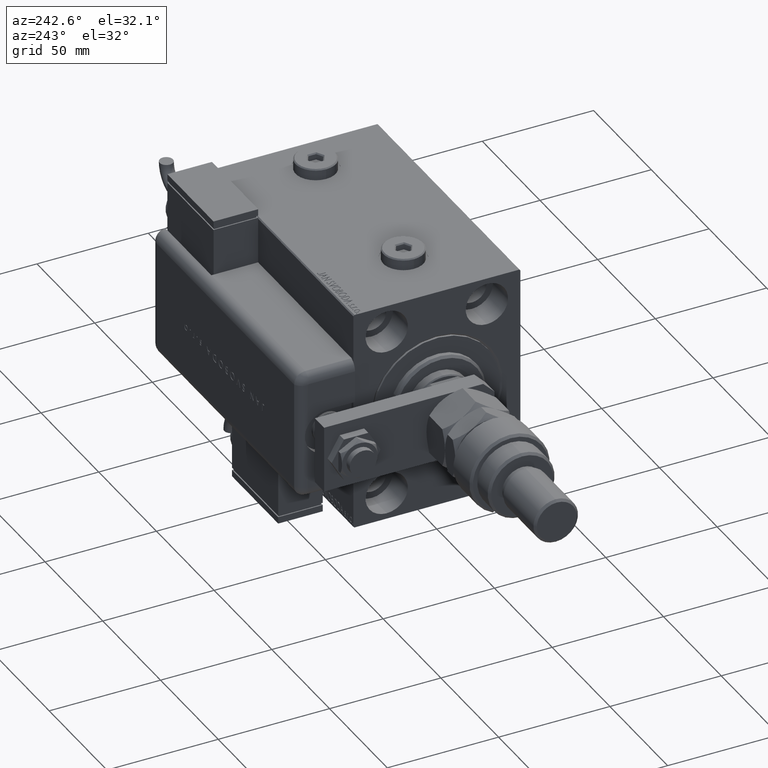
[diagram: clean part render]
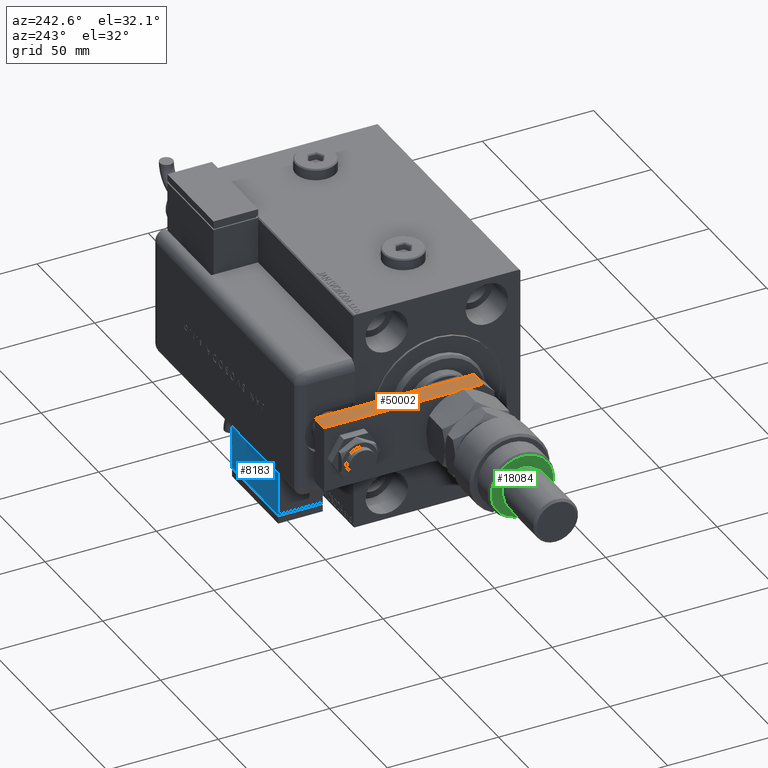
[diagram: same view with three faces highlighted in distinct colors, each labeled with its STEP entity id]
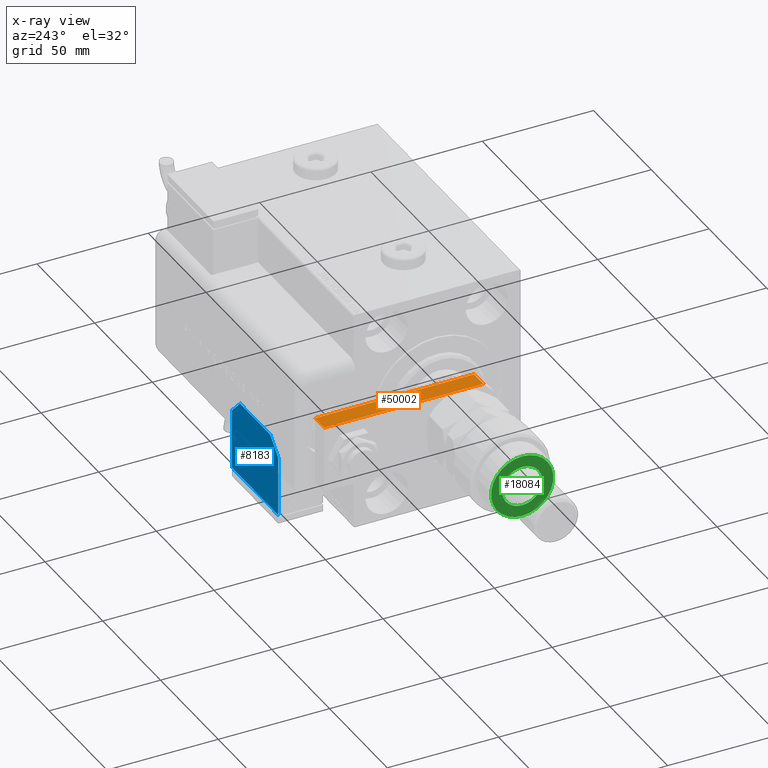
[diagram: x-ray of the same camera — body ghosted, the three highlighted faces saturated]
A machine part, auxiliary view with three faces highlighted in distinct colors.
The next image is the same camera in x-ray (body ghosted, the three faces saturated) — at least one of them is partly hidden behind the body in this view.
Their STEP definitions:

[orange] entity #50002 — the highlighted planar face has unit normal (-0, -0, -1).
#1119 = CARTESIAN_POINT ( 'NONE',  ( -14.99999999999999822, 76.50000000000000000, 8.000000000000000000 ) ) ;
#1383 = EDGE_CURVE ( 'NONE', #55730, #44497, #55111, .T. ) ;
#1723 = CARTESIAN_POINT ( 'NONE',  ( -15.00000000000000888, 5.000000000000018652, 8.000000000000000000 ) ) ;
#2107 = CARTESIAN_POINT ( 'NONE',  ( -14.99999999999999822, 76.50000000000000000, 0.000000000000000000 ) ) ;
#2666 = CARTESIAN_POINT ( 'NONE',  ( -15.00000000000000888, 5.000000000000018652, 0.000000000000000000 ) ) ;
#3245 = ORIENTED_EDGE ( 'NONE', *, *, #14429, .T. ) ;
#5252 = VERTEX_POINT ( 'NONE', #2666 ) ;
#9376 = DIRECTION ( 'NONE',  ( 1.360567432138672574E-16, 1.000000000000000000, 0.000000000000000000 ) ) ;
#9900 = LINE ( 'NONE', #59379, #62229 ) ;
#13666 = DIRECTION ( 'NONE',  ( 0.000000000000000000, 0.000000000000000000, 1.000000000000000000 ) ) ;
#14429 = EDGE_CURVE ( 'NONE', #44388, #5252, #23788, .T. ) ;
#17883 = LINE ( 'NONE', #22726, #25192 ) ;
#18760 = FACE_OUTER_BOUND ( 'NONE', #54219, .T. ) ;
#19997 = VECTOR ( 'NONE', #20818, 1000.000000000000000 ) ;
#20378 = EDGE_CURVE ( 'NONE', #55730, #44388, #9900, .T. ) ;
#20818 = DIRECTION ( 'NONE',  ( -1.360567432138672328E-16, -1.000000000000000000, 0.000000000000000000 ) ) ;
#22726 = CARTESIAN_POINT ( 'NONE',  ( -15.00000000000000888, 5.000000000000018652, 8.000000000000000000 ) ) ;
#23788 = LINE ( 'NONE', #53241, #49523 ) ;
#25192 = VECTOR ( 'NONE', #13666, 1000.000000000000000 ) ;
#33053 = ORIENTED_EDGE ( 'NONE', *, *, #60301, .T. ) ;
#38482 = CARTESIAN_POINT ( 'NONE',  ( -14.99999999999999822, 76.50000000000000000, 8.000000000000000000 ) ) ;
#39455 = ORIENTED_EDGE ( 'NONE', *, *, #1383, .F. ) ;
#43329 = PLANE ( 'NONE',  #58946 ) ;
#43398 = ORIENTED_EDGE ( 'NONE', *, *, #20378, .T. ) ;
#43832 = DIRECTION ( 'NONE',  ( -1.360567432138672328E-16, -1.000000000000000000, 0.000000000000000000 ) ) ;
#44388 = VERTEX_POINT ( 'NONE', #2107 ) ;
#44497 = VERTEX_POINT ( 'NONE', #1723 ) ;
#49523 = VECTOR ( 'NONE', #43832, 1000.000000000000000 ) ;
#50002 = ADVANCED_FACE ( 'NONE', ( #18760 ), #43329, .F. ) ;
#53241 = CARTESIAN_POINT ( 'NONE',  ( -14.99999999999999822, 76.50000000000000000, 0.000000000000000000 ) ) ;
#53686 = DIRECTION ( 'NONE',  ( 1.000000000000000000, -1.360567432138672574E-16, 0.000000000000000000 ) ) ;
#54219 = EDGE_LOOP ( 'NONE', ( #3245, #33053, #39455, #43398 ) ) ;
#54224 = CARTESIAN_POINT ( 'NONE',  ( -14.99999999999999822, 76.50000000000000000, 8.000000000000000000 ) ) ;
#55111 = LINE ( 'NONE', #1119, #19997 ) ;
#55730 = VERTEX_POINT ( 'NONE', #54224 ) ;
#58732 = DIRECTION ( 'NONE',  ( -0.000000000000000000, -0.000000000000000000, -1.000000000000000000 ) ) ;
#58946 = AXIS2_PLACEMENT_3D ( 'NONE', #38482, #53686, #9376 ) ;
#59379 = CARTESIAN_POINT ( 'NONE',  ( -14.99999999999999822, 76.50000000000000000, 8.000000000000000000 ) ) ;
#60301 = EDGE_CURVE ( 'NONE', #5252, #44497, #17883, .T. ) ;
#62229 = VECTOR ( 'NONE', #58732, 1000.000000000000000 ) ;

[blue] entity #8183 — the highlighted planar face has unit normal (-0, 1, -0).
#636 = VERTEX_POINT ( 'NONE', #5479 ) ;
#806 = DIRECTION ( 'NONE',  ( 0.000000000000000000, 0.000000000000000000, 1.000000000000000000 ) ) ;
#1117 = CARTESIAN_POINT ( 'NONE',  ( 20.00000000000005684, 13.50000000000003730, 10.00000000000000000 ) ) ;
#1367 = ORIENTED_EDGE ( 'NONE', *, *, #22045, .T. ) ;
#1841 = DIRECTION ( 'NONE',  ( -1.284980352575421081E-16, -1.000000000000000000, -0.000000000000000000 ) ) ;
#2207 = VECTOR ( 'NONE', #52125, 1000.000000000000114 ) ;
#2337 = LINE ( 'NONE', #31740, #2207 ) ;
#2528 = DIRECTION ( 'NONE',  ( 1.284980352575412699E-16, 1.000000000000000000, 0.000000000000000000 ) ) ;
#3364 = CARTESIAN_POINT ( 'NONE',  ( -19.99999999999994316, -13.49999999999996092, 10.00000000000000000 ) ) ;
#3523 = EDGE_CURVE ( 'NONE', #15537, #33591, #6043, .T. ) ;
#4492 = DIRECTION ( 'NONE',  ( -1.284980352575421081E-16, -1.000000000000000000, -0.000000000000000000 ) ) ;
#5479 = CARTESIAN_POINT ( 'NONE',  ( -12.99999999999994138, 20.50000000000009592, 10.00000000000000000 ) ) ;
#6043 = LINE ( 'NONE', #16070, #18064 ) ;
#6479 = CARTESIAN_POINT ( 'NONE',  ( -19.99999999999993960, 13.49999999999986500, 10.00000000000000000 ) ) ;
#7060 = VERTEX_POINT ( 'NONE', #30175 ) ;
#7122 = LINE ( 'NONE', #6479, #54803 ) ;
#8183 = ADVANCED_FACE ( 'NONE', ( #19542 ), #29877, .T. ) ;
#8734 = ORIENTED_EDGE ( 'NONE', *, *, #30188, .T. ) ;
#9663 = CARTESIAN_POINT ( 'NONE',  ( -19.99999999999994316, -13.49999999999996092, 10.00000000000000000 ) ) ;
#14883 = CARTESIAN_POINT ( 'NONE',  ( 20.00000000000005329, -13.49999999999996092, 10.00000000000000000 ) ) ;
#15537 = VERTEX_POINT ( 'NONE', #17305 ) ;
#15592 = CARTESIAN_POINT ( 'NONE',  ( 12.99999999999999112, 20.50000000000009592, 10.00000000000000000 ) ) ;
#15655 = CARTESIAN_POINT ( 'NONE',  ( 0.000000000000000000, 0.000000000000000000, 10.00000000000000000 ) ) ;
#16070 = CARTESIAN_POINT ( 'NONE',  ( -19.99999999999994316, -13.49999999999996092, 10.00000000000000000 ) ) ;
#17305 = CARTESIAN_POINT ( 'NONE',  ( -19.99999999999993960, 13.49999999999986500, 10.00000000000000000 ) ) ;
#17651 = VERTEX_POINT ( 'NONE', #14883 ) ;
#18064 = VECTOR ( 'NONE', #1841, 1000.000000000000000 ) ;
#18726 = LINE ( 'NONE', #9663, #24235 ) ;
#19542 = FACE_OUTER_BOUND ( 'NONE', #34364, .T. ) ;
#19797 = CARTESIAN_POINT ( 'NONE',  ( -19.99999999999993960, 2.569960705150834076E-15, 10.00000000000000000 ) ) ;
#22036 = CARTESIAN_POINT ( 'NONE',  ( -10.00000000000004086, 20.50000000000009592, 10.00000000000000000 ) ) ;
#22045 = EDGE_CURVE ( 'NONE', #7060, #17651, #30862, .T. ) ;
#22358 = LINE ( 'NONE', #22036, #52374 ) ;
#22404 = EDGE_CURVE ( 'NONE', #28670, #33500, #2337, .T. ) ;
#22968 = VECTOR ( 'NONE', #56731, 1000.000000000000000 ) ;
#24108 = VECTOR ( 'NONE', #2528, 1000.000000000000000 ) ;
#24235 = VECTOR ( 'NONE', #4492, 1000.000000000000000 ) ;
#26507 = AXIS2_PLACEMENT_3D ( 'NONE', #15655, #806, #49620 ) ;
#28670 = VERTEX_POINT ( 'NONE', #1117 ) ;
#29877 = PLANE ( 'NONE',  #26507 ) ;
#30175 = CARTESIAN_POINT ( 'NONE',  ( -19.99999999999994316, -13.49999999999996092, 10.00000000000000000 ) ) ;
#30188 = EDGE_CURVE ( 'NONE', #33591, #7060, #18726, .T. ) ;
#30862 = LINE ( 'NONE', #3364, #22968 ) ;
#30924 = ORIENTED_EDGE ( 'NONE', *, *, #48820, .T. ) ;
#31740 = CARTESIAN_POINT ( 'NONE',  ( 9.999999999999984013, 23.50000000000009592, 10.00000000000000000 ) ) ;
#32037 = DIRECTION ( 'NONE',  ( -1.000000000000000000, 0.000000000000000000, 0.000000000000000000 ) ) ;
#33500 = VERTEX_POINT ( 'NONE', #15592 ) ;
#33591 = VERTEX_POINT ( 'NONE', #19797 ) ;
#34364 = EDGE_LOOP ( 'NONE', ( #61506, #36630, #30924, #47512, #8734, #1367, #47058 ) ) ;
#36471 = LINE ( 'NONE', #51371, #24108 ) ;
#36630 = ORIENTED_EDGE ( 'NONE', *, *, #39268, .T. ) ;
#39268 = EDGE_CURVE ( 'NONE', #33500, #636, #22358, .T. ) ;
#45952 = DIRECTION ( 'NONE',  ( -0.7071067811865356934, -0.7071067811865593411, -0.000000000000000000 ) ) ;
#47058 = ORIENTED_EDGE ( 'NONE', *, *, #59629, .T. ) ;
#47512 = ORIENTED_EDGE ( 'NONE', *, *, #3523, .T. ) ;
#48820 = EDGE_CURVE ( 'NONE', #636, #15537, #7122, .T. ) ;
#49620 = DIRECTION ( 'NONE',  ( 1.000000000000000000, 0.000000000000000000, -0.000000000000000000 ) ) ;
#51371 = CARTESIAN_POINT ( 'NONE',  ( 20.00000000000005329, -13.49999999999996092, 10.00000000000000000 ) ) ;
#52125 = DIRECTION ( 'NONE',  ( -0.7071067811865479058, 0.7071067811865470176, -0.000000000000000000 ) ) ;
#52374 = VECTOR ( 'NONE', #32037, 1000.000000000000000 ) ;
#54803 = VECTOR ( 'NONE', #45952, 1000.000000000000000 ) ;
#56731 = DIRECTION ( 'NONE',  ( 1.000000000000000000, 0.000000000000000000, 0.000000000000000000 ) ) ;
#59629 = EDGE_CURVE ( 'NONE', #17651, #28670, #36471, .T. ) ;
#61506 = ORIENTED_EDGE ( 'NONE', *, *, #22404, .T. ) ;

[green] entity #18084 — the highlighted planar face has unit normal (-1, 0, 0).
#1697 = CIRCLE ( 'NONE', #11019, 9.000000000000000000 ) ;
#1988 = EDGE_LOOP ( 'NONE', ( #21615, #39545 ) ) ;
#6071 = CARTESIAN_POINT ( 'NONE',  ( 0.000000000000000000, 0.000000000000000000, 26.00000000000000355 ) ) ;
#7288 = CARTESIAN_POINT ( 'NONE',  ( 0.000000000000000000, 0.000000000000000000, 26.00000000000000355 ) ) ;
#8326 = VERTEX_POINT ( 'NONE', #46384 ) ;
#9940 = DIRECTION ( 'NONE',  ( 0.000000000000000000, 0.000000000000000000, 1.000000000000000000 ) ) ;
#11019 = AXIS2_PLACEMENT_3D ( 'NONE', #33538, #37135, #52974 ) ;
#11529 = AXIS2_PLACEMENT_3D ( 'NONE', #59114, #46415, #36690 ) ;
#12861 = AXIS2_PLACEMENT_3D ( 'NONE', #39356, #9940, #42935 ) ;
#15295 = VERTEX_POINT ( 'NONE', #59694 ) ;
#17935 = DIRECTION ( 'NONE',  ( 0.000000000000000000, 0.000000000000000000, 1.000000000000000000 ) ) ;
#18084 = ADVANCED_FACE ( 'NONE', ( #40657, #30631 ), #50370, .T. ) ;
#20709 = EDGE_CURVE ( 'NONE', #8326, #61893, #31175, .T. ) ;
#21615 = ORIENTED_EDGE ( 'NONE', *, *, #38582, .F. ) ;
#21669 = ORIENTED_EDGE ( 'NONE', *, *, #20709, .T. ) ;
#22970 = EDGE_CURVE ( 'NONE', #61893, #8326, #51780, .T. ) ;
#29077 = ORIENTED_EDGE ( 'NONE', *, *, #22970, .T. ) ;
#29151 = EDGE_CURVE ( 'NONE', #15295, #45998, #42761, .T. ) ;
#30307 = DIRECTION ( 'NONE',  ( 0.000000000000000000, 0.000000000000000000, 1.000000000000000000 ) ) ;
#30631 = FACE_BOUND ( 'NONE', #1988, .T. ) ;
#31175 = CIRCLE ( 'NONE', #37414, 13.99999999999997513 ) ;
#33538 = CARTESIAN_POINT ( 'NONE',  ( 0.000000000000000000, 0.000000000000000000, 26.00000000000000355 ) ) ;
#34110 = AXIS2_PLACEMENT_3D ( 'NONE', #6071, #30307, #44555 ) ;
#36690 = DIRECTION ( 'NONE',  ( 1.000000000000000000, 0.000000000000000000, 0.000000000000000000 ) ) ;
#37135 = DIRECTION ( 'NONE',  ( 0.000000000000000000, 0.000000000000000000, 1.000000000000000000 ) ) ;
#37414 = AXIS2_PLACEMENT_3D ( 'NONE', #7288, #17935, #61628 ) ;
#37648 = EDGE_LOOP ( 'NONE', ( #21669, #29077 ) ) ;
#38143 = CARTESIAN_POINT ( 'NONE',  ( -9.000000000000000000, 0.000000000000000000, 26.00000000000000355 ) ) ;
#38582 = EDGE_CURVE ( 'NONE', #45998, #15295, #1697, .T. ) ;
#39356 = CARTESIAN_POINT ( 'NONE',  ( 0.000000000000000000, 0.000000000000000000, 26.00000000000000355 ) ) ;
#39545 = ORIENTED_EDGE ( 'NONE', *, *, #29151, .F. ) ;
#40657 = FACE_OUTER_BOUND ( 'NONE', #37648, .T. ) ;
#42761 = CIRCLE ( 'NONE', #12861, 9.000000000000000000 ) ;
#42935 = DIRECTION ( 'NONE',  ( 1.000000000000000000, 0.000000000000000000, 0.000000000000000000 ) ) ;
#44240 = CARTESIAN_POINT ( 'NONE',  ( 13.99999999999997513, 1.775737858763660437E-15, 26.00000000000000355 ) ) ;
#44555 = DIRECTION ( 'NONE',  ( 1.000000000000000000, 0.000000000000000000, -0.000000000000000000 ) ) ;
#45998 = VERTEX_POINT ( 'NONE', #38143 ) ;
#46384 = CARTESIAN_POINT ( 'NONE',  ( -13.99999999999997513, 0.000000000000000000, 26.00000000000000355 ) ) ;
#46415 = DIRECTION ( 'NONE',  ( 0.000000000000000000, 0.000000000000000000, 1.000000000000000000 ) ) ;
#50370 = PLANE ( 'NONE',  #34110 ) ;
#51780 = CIRCLE ( 'NONE', #11529, 13.99999999999997513 ) ;
#52974 = DIRECTION ( 'NONE',  ( 1.000000000000000000, 0.000000000000000000, 0.000000000000000000 ) ) ;
#59114 = CARTESIAN_POINT ( 'NONE',  ( 0.000000000000000000, 0.000000000000000000, 26.00000000000000355 ) ) ;
#59694 = CARTESIAN_POINT ( 'NONE',  ( 9.000000000000000000, 1.102182119232617714E-15, 26.00000000000000355 ) ) ;
#61628 = DIRECTION ( 'NONE',  ( 1.000000000000000000, 0.000000000000000000, 0.000000000000000000 ) ) ;
#61893 = VERTEX_POINT ( 'NONE', #44240 ) ;